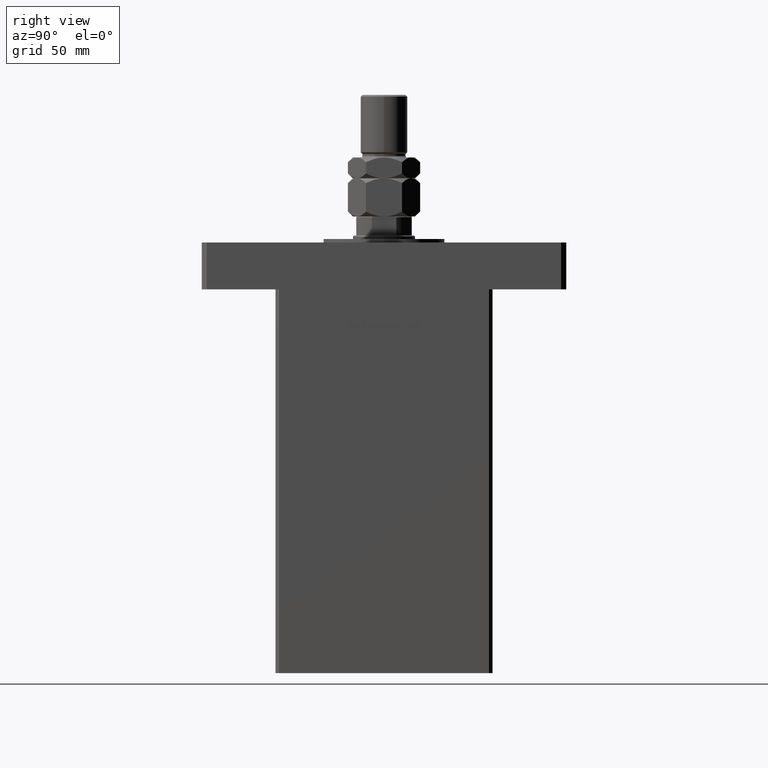
[diagram: clean part render]
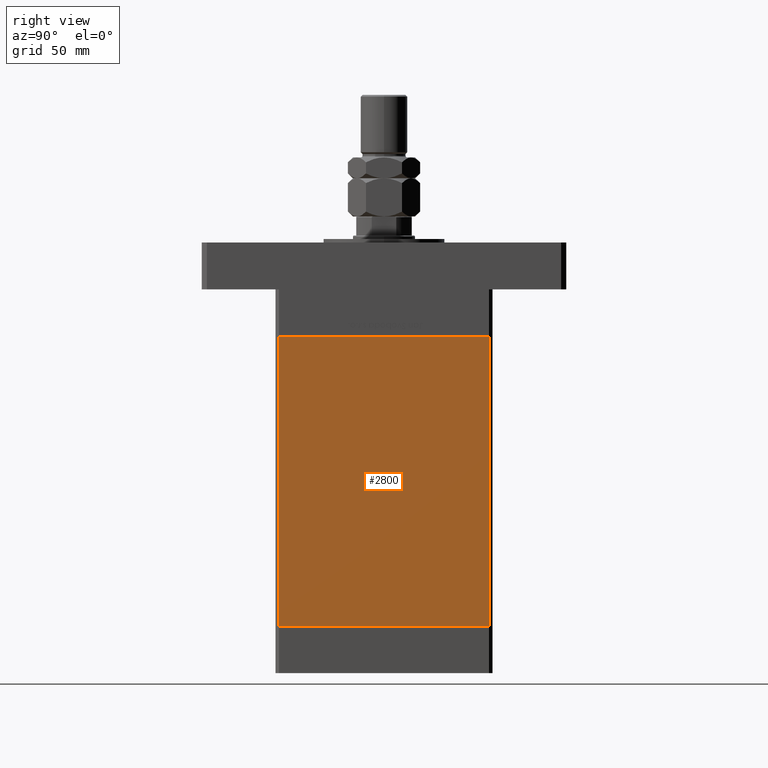
[diagram: same view with one face highlighted and labeled with its STEP entity id]
A machine part, right view. The second image highlights one B-rep face of the part: STEP entity #2800.
In plain terms, the highlighted planar face has unit normal (1, -0, 0).
Its self-contained STEP definition (entity closure, byte-faithful):
#507 = VECTOR ( 'NONE', #33570, 1000.000000000000000 ) ;
#2800 = ADVANCED_FACE ( 'NONE', ( #46531 ), #3805, .T. ) ;
#3455 = VECTOR ( 'NONE', #17007, 1000.000000000000000 ) ;
#3805 = PLANE ( 'NONE',  #35455 ) ;
#7508 = CARTESIAN_POINT ( 'NONE',  ( 75.00000000000001421, 60.50000000000000000, 167.0000000000000000 ) ) ;
#8216 = CARTESIAN_POINT ( 'NONE',  ( 75.00000000000001421, 60.50000000000000000, 167.0000000000000000 ) ) ;
#11054 = CARTESIAN_POINT ( 'NONE',  ( 74.99999999999998579, -60.50000000000000000, 0.000000000000000000 ) ) ;
#12361 = LINE ( 'NONE', #16797, #43014 ) ;
#15192 = CARTESIAN_POINT ( 'NONE',  ( 74.99999999999998579, -60.50000000000000000, 167.0000000000000000 ) ) ;
#15297 = LINE ( 'NONE', #7508, #507 ) ;
#16797 = CARTESIAN_POINT ( 'NONE',  ( 74.99999999999998579, -60.50000000000000000, 167.0000000000000000 ) ) ;
#17007 = DIRECTION ( 'NONE',  ( -0.000000000000000000, -0.000000000000000000, -1.000000000000000000 ) ) ;
#17388 = CARTESIAN_POINT ( 'NONE',  ( 75.00000000000001421, 60.50000000000000000, 0.000000000000000000 ) ) ;
#18385 = ORIENTED_EDGE ( 'NONE', *, *, #21052, .T. ) ;
#19358 = ORIENTED_EDGE ( 'NONE', *, *, #23452, .T. ) ;
#19870 = DIRECTION ( 'NONE',  ( 2.293849224432142354E-16, 1.000000000000000000, 0.000000000000000000 ) ) ;
#21052 = EDGE_CURVE ( 'NONE', #24979, #35079, #12361, .T. ) ;
#21773 = DIRECTION ( 'NONE',  ( -0.000000000000000000, -0.000000000000000000, -1.000000000000000000 ) ) ;
#23452 = EDGE_CURVE ( 'NONE', #38623, #24979, #15297, .T. ) ;
#24979 = VERTEX_POINT ( 'NONE', #15192 ) ;
#26154 = EDGE_CURVE ( 'NONE', #28463, #35079, #50214, .T. ) ;
#27231 = ORIENTED_EDGE ( 'NONE', *, *, #26154, .F. ) ;
#28463 = VERTEX_POINT ( 'NONE', #51110 ) ;
#29490 = LINE ( 'NONE', #33112, #3455 ) ;
#31652 = ORIENTED_EDGE ( 'NONE', *, *, #36197, .F. ) ;
#32762 = EDGE_LOOP ( 'NONE', ( #27231, #31652, #19358, #18385 ) ) ;
#33112 = CARTESIAN_POINT ( 'NONE',  ( 75.00000000000001421, 60.50000000000000000, 167.0000000000000000 ) ) ;
#33570 = DIRECTION ( 'NONE',  ( -2.293849224432141861E-16, -1.000000000000000000, 0.000000000000000000 ) ) ;
#35079 = VERTEX_POINT ( 'NONE', #11054 ) ;
#35455 = AXIS2_PLACEMENT_3D ( 'NONE', #45431, #37910, #19870 ) ;
#36197 = EDGE_CURVE ( 'NONE', #38623, #28463, #29490, .T. ) ;
#37910 = DIRECTION ( 'NONE',  ( 1.000000000000000000, -2.293849224432142354E-16, 0.000000000000000000 ) ) ;
#38623 = VERTEX_POINT ( 'NONE', #8216 ) ;
#38711 = VECTOR ( 'NONE', #47084, 1000.000000000000000 ) ;
#43014 = VECTOR ( 'NONE', #21773, 1000.000000000000000 ) ;
#45431 = CARTESIAN_POINT ( 'NONE',  ( 75.00000000000001421, 60.50000000000000000, 167.0000000000000000 ) ) ;
#46531 = FACE_OUTER_BOUND ( 'NONE', #32762, .T. ) ;
#47084 = DIRECTION ( 'NONE',  ( -2.293849224432141861E-16, -1.000000000000000000, 0.000000000000000000 ) ) ;
#50214 = LINE ( 'NONE', #17388, #38711 ) ;
#51110 = CARTESIAN_POINT ( 'NONE',  ( 75.00000000000001421, 60.50000000000000000, 0.000000000000000000 ) ) ;